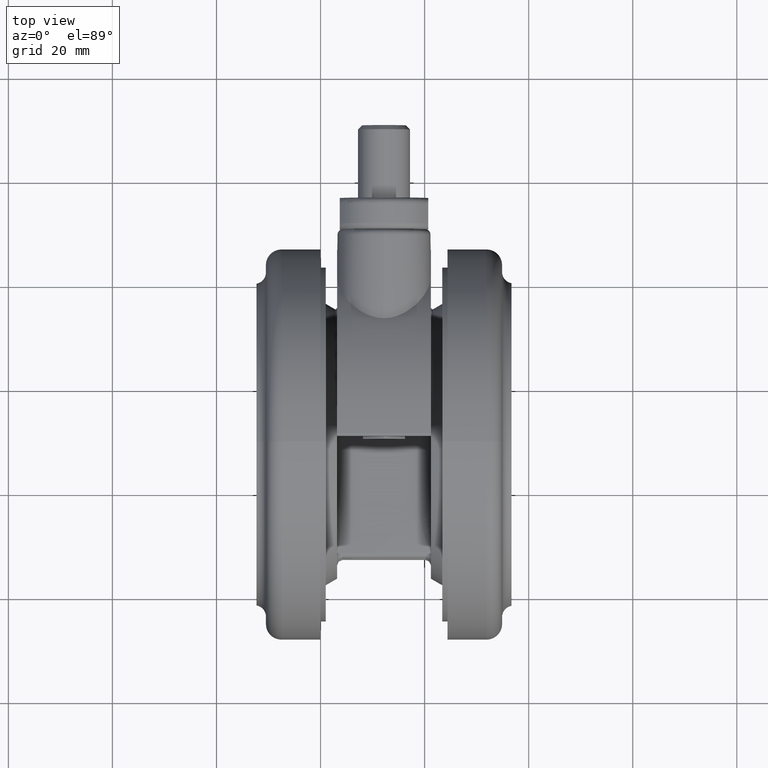
[diagram: clean part render]
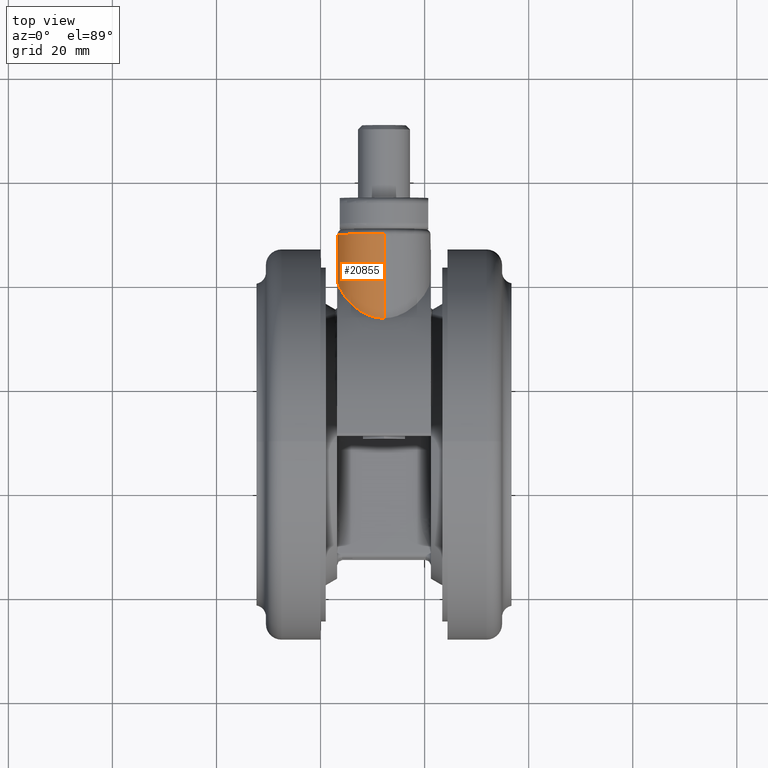
[diagram: same view with one face highlighted and labeled with its STEP entity id]
A machine part, top view. The second image highlights one B-rep face of the part: STEP entity #20855.
In plain terms, the highlighted cylindrical surface (partial cylindrical patch) has radius 9 mm, axis along (0, 1, 0).
Its self-contained STEP definition (entity closure, byte-faithful):
#33 = CARTESIAN_POINT ( 'NONE',  ( -33.30713176493436800, -18.30336398044475000, -33.33863695620522100 ) ) ;
#187 = CARTESIAN_POINT ( 'NONE',  ( -32.73438615120912200, -18.85755703146169500, -33.42719606618112500 ) ) ;
#363 = CARTESIAN_POINT ( 'NONE',  ( -32.08389776864351000, -19.54289166195427900, -33.48860210448997800 ) ) ;
#515 = CIRCLE ( 'NONE', #21694, 9.000000000000000000 ) ;
#520 = CARTESIAN_POINT ( 'NONE',  ( -31.78001900630533800, -19.91481397838273900, -33.49983213423386300 ) ) ;
#945 = CARTESIAN_POINT ( 'NONE',  ( -40.00000000002038500, -20.00000000000522200, -24.49999999999997900 ) ) ;
#1307 = VECTOR ( 'NONE', #34889, 1000.000000000000000 ) ;
#1968 = CARTESIAN_POINT ( 'NONE',  ( -23.77498685593116400, -29.00000000000517300, -24.49999999999997900 ) ) ;
#2136 = CARTESIAN_POINT ( 'NONE',  ( -26.54334829511083500, -26.49589436363392300, -30.75448524697714700 ) ) ;
#2562 = CARTESIAN_POINT ( 'NONE',  ( -40.00000000002041400, -11.00000000000522200, -24.49999999999997900 ) ) ;
#3170 = CARTESIAN_POINT ( 'NONE',  ( -35.87574802425783800, -15.66159338501061900, -32.38611689351988300 ) ) ;
#3324 = CARTESIAN_POINT ( 'NONE',  ( -35.06805180751398900, -16.60496974269844400, -32.83511306016504200 ) ) ;
#3348 = CARTESIAN_POINT ( 'NONE',  ( -37.69977894945471100, -11.41720464057487800, -27.21177603767621600 ) ) ;
#3482 = CARTESIAN_POINT ( 'NONE',  ( -34.36939333765092600, -17.30073031935056000, -33.08607637644161100 ) ) ;
#3503 = CARTESIAN_POINT ( 'NONE',  ( -36.88513145381682500, -13.71578737636843400, -30.94289655564686800 ) ) ;
#3636 = CARTESIAN_POINT ( 'NONE',  ( -33.67330947495853600, -17.95835017877312000, -33.26543658312031900 ) ) ;
#3653 = CARTESIAN_POINT ( 'NONE',  ( -36.62476291007291700, -14.34274337548590900, -31.49967753085571700 ) ) ;
#3801 = CARTESIAN_POINT ( 'NONE',  ( -33.29030494889100600, -18.31931536451793400, -33.34167984805252900 ) ) ;
#3957 = CARTESIAN_POINT ( 'NONE',  ( -32.72821978795075600, -18.86369291785017700, -33.42797941789683600 ) ) ;
#4121 = CARTESIAN_POINT ( 'NONE',  ( -31.97988616255907600, -19.66453473285828200, -33.49375817794388900 ) ) ;
#4282 = CARTESIAN_POINT ( 'NONE',  ( -31.72144385112048700, -20.00000000000519400, -33.49999999999994300 ) ) ;
#4507 = DIRECTION ( 'NONE',  ( -1.000000000000000000, -2.997602166487920300E-015, 0.0000000000000000000 ) ) ;
#4711 = DIRECTION ( 'NONE',  ( -3.083952846180990500E-015, 1.000000000000000000, 0.0000000000000000000 ) ) ;
#5738 = CARTESIAN_POINT ( 'NONE',  ( -23.77498685593117100, -29.00000000000517300, -25.19589137295714200 ) ) ;
#5858 = EDGE_CURVE ( 'NONE', #21084, #16599, #43460, .T. ) ;
#5887 = CARTESIAN_POINT ( 'NONE',  ( -27.75274312952664600, -25.22734377885575100, -31.84679253145716200 ) ) ;
#6935 = CARTESIAN_POINT ( 'NONE',  ( -35.70459386583026900, -15.88581641803392100, -32.50495600508141100 ) ) ;
#6952 = CARTESIAN_POINT ( 'NONE',  ( -37.82525612248529300, -10.99999999914741100, -24.49999999995632300 ) ) ;
#7086 = CARTESIAN_POINT ( 'NONE',  ( -35.03692874795783800, -16.63734434328247500, -32.84820913853399600 ) ) ;
#7106 = CARTESIAN_POINT ( 'NONE',  ( -37.63130571601269000, -11.63604617516592100, -27.82924064332484100 ) ) ;
#7248 = CARTESIAN_POINT ( 'NONE',  ( -34.13362449149796900, -17.52512340102790500, -33.15316796893933600 ) ) ;
#7270 = CARTESIAN_POINT ( 'NONE',  ( -36.84213650487051700, -13.82250245545517200, -31.04529622321571500 ) ) ;
#7408 = CARTESIAN_POINT ( 'NONE',  ( -33.59926125158543900, -18.02790571514947600, -33.28128301559603100 ) ) ;
#7436 = CARTESIAN_POINT ( 'NONE',  ( -36.61411752968402300, -14.36672245932378200, -31.51900622259868400 ) ) ;
#7575 = CARTESIAN_POINT ( 'NONE',  ( -33.28677697522150000, -18.32266206319951300, -33.34231518889743000 ) ) ;
#7734 = CARTESIAN_POINT ( 'NONE',  ( -32.52764197791672300, -19.06554754971840600, -33.45183454979846300 ) ) ;
#7897 = CARTESIAN_POINT ( 'NONE',  ( -31.95642704327560000, -19.69261116882563900, -33.49475088673983700 ) ) ;
#8677 = CARTESIAN_POINT ( 'NONE',  ( 500000.0000000000000, -10.99999999850630100, -24.49999999999997900 ) ) ;
#8921 = CARTESIAN_POINT ( 'NONE',  ( -31.72144385112048700, -20.00000000000519400, -33.49999999999994300 ) ) ;
#9490 = CARTESIAN_POINT ( 'NONE',  ( -24.14023075684809800, -28.69691220482011900, -26.83977753160290900 ) ) ;
#9641 = CARTESIAN_POINT ( 'NONE',  ( -28.98298255318832500, -23.80483597313923700, -32.67499635977414800 ) ) ;
#10053 = CARTESIAN_POINT ( 'NONE',  ( -37.82525612248529300, -10.99999999914741100, -24.49999999995632300 ) ) ;
#10678 = CARTESIAN_POINT ( 'NONE',  ( -35.59286097569509600, -16.02229684605807900, -32.57330506831237900 ) ) ;
#10849 = CARTESIAN_POINT ( 'NONE',  ( -34.93924374801813600, -16.73853326205973600, -32.88879374681921800 ) ) ;
#10876 = CARTESIAN_POINT ( 'NONE',  ( -37.49831965673433800, -12.04619451284945000, -28.72918992993434600 ) ) ;
#11020 = EDGE_LOOP ( 'NONE', ( #47266, #31587, #14058, #38408, #16192, #21673 ) ) ;
#11021 = CARTESIAN_POINT ( 'NONE',  ( -33.96271278572047700, -17.68648669367937400, -33.19763878015589900 ) ) ;
#11040 = CARTESIAN_POINT ( 'NONE',  ( -36.75417159556613500, -14.03747969069417900, -31.24223242824109200 ) ) ;
#11176 = CARTESIAN_POINT ( 'NONE',  ( -33.58080175280338900, -18.04525247711641400, -33.28515650682592800 ) ) ;
#11198 = CARTESIAN_POINT ( 'NONE',  ( -36.56896142202441500, -14.46626956007070100, -31.59801613666288800 ) ) ;
#11342 = CARTESIAN_POINT ( 'NONE',  ( -33.17312179566065600, -18.43050623676098400, -33.36275643291443800 ) ) ;
#11520 = CARTESIAN_POINT ( 'NONE',  ( -32.33150972654167500, -19.27075978897065100, -33.47059186936006400 ) ) ;
#11680 = CARTESIAN_POINT ( 'NONE',  ( -31.92585974901854900, -19.72949140906644100, -33.49597070387199700 ) ) ;
#13259 = CARTESIAN_POINT ( 'NONE',  ( -24.49629575243165600, -28.39379888046454100, -27.76296115049373400 ) ) ;
#13405 = CARTESIAN_POINT ( 'NONE',  ( -30.19984316497147200, -22.24118781089961100, -33.23430802410702300 ) ) ;
#14058 = ORIENTED_EDGE ( 'NONE', *, *, #24354, .T. ) ;
#14453 = CARTESIAN_POINT ( 'NONE',  ( -35.56517406487271400, -16.05531474266132000, -32.58946922727848500 ) ) ;
#14608 = CARTESIAN_POINT ( 'NONE',  ( -34.70533804498169400, -16.97326811115327800, -32.97593455769052200 ) ) ;
#14630 = CARTESIAN_POINT ( 'NONE',  ( -37.41395238338466100, -12.29339035712662600, -29.14873098418965100 ) ) ;
#14771 = CARTESIAN_POINT ( 'NONE',  ( -33.88940375874794600, -17.75545183611961900, -33.21562311405325800 ) ) ;
#14794 = CARTESIAN_POINT ( 'NONE',  ( -36.71915457321480100, -14.12143590763146700, -31.31487600060783900 ) ) ;
#14938 = CARTESIAN_POINT ( 'NONE',  ( -33.49885918532889700, -18.12226787816748100, -33.30223045523489800 ) ) ;
#14968 = CARTESIAN_POINT ( 'NONE',  ( -36.38331424830957400, -14.85052108653603000, -31.89035894284504700 ) ) ;
#15108 = CARTESIAN_POINT ( 'NONE',  ( -32.93017515348614700, -18.66496542939007600, -33.40054950431672900 ) ) ;
#15254 = CARTESIAN_POINT ( 'NONE',  ( -32.22806403136522800, -19.38263370771758100, -33.47881113503473900 ) ) ;
#15424 = CARTESIAN_POINT ( 'NONE',  ( -31.86191101510380700, -19.80902136509506700, -33.49798701780802900 ) ) ;
#16192 = ORIENTED_EDGE ( 'NONE', *, *, #36313, .T. ) ;
#16599 = VERTEX_POINT ( 'NONE', #2562 ) ;
#17032 = CARTESIAN_POINT ( 'NONE',  ( -24.93385008721722300, -28.01058705579846700, -28.61417754313480100 ) ) ;
#17187 = CARTESIAN_POINT ( 'NONE',  ( -31.35468604444054100, -20.58170435858300400, -33.49999999999998600 ) ) ;
#17249 = CYLINDRICAL_SURFACE ( 'NONE', #19781, 8.999999999999998200 ) ;
#17461 = CARTESIAN_POINT ( 'NONE',  ( -36.00288834672935000, -15.47403794687700600, -32.27918167249248400 ) ) ;
#18240 = CARTESIAN_POINT ( 'NONE',  ( -35.47803918197207200, -16.15840932896814100, -32.63954255213406000 ) ) ;
#18376 = EDGE_CURVE ( 'NONE', #21084, #35752, #22528, .T. ) ;
#18393 = CARTESIAN_POINT ( 'NONE',  ( -34.54213929490060100, -17.13351409128105400, -33.03138302540587300 ) ) ;
#18415 = CARTESIAN_POINT ( 'NONE',  ( -37.36835416826163900, -12.42547160023361900, -29.36252267166167600 ) ) ;
#18564 = CARTESIAN_POINT ( 'NONE',  ( -33.87164802442477200, -17.77214023306839500, -33.21989981361321800 ) ) ;
#18580 = CARTESIAN_POINT ( 'NONE',  ( -36.70794696675430700, -14.14825351123833700, -31.33793864051492100 ) ) ;
#18708 = CARTESIAN_POINT ( 'NONE',  ( -33.36565893035491100, -18.24798280816455400, -33.32785194627558700 ) ) ;
#18738 = CARTESIAN_POINT ( 'NONE',  ( -36.00288834672935000, -15.47403794687700600, -32.27918167249248400 ) ) ;
#18880 = CARTESIAN_POINT ( 'NONE',  ( -32.79228154604476200, -18.80014792022326700, -33.41969910455880900 ) ) ;
#19040 = CARTESIAN_POINT ( 'NONE',  ( -32.20443335768599300, -19.40855223128224300, -33.48054655379912200 ) ) ;
#19199 = CARTESIAN_POINT ( 'NONE',  ( -31.83909502699988500, -19.83823189951308300, -33.49854651692262300 ) ) ;
#19591 = CARTESIAN_POINT ( 'NONE',  ( 500000.0000000000000, -19.99999999850630100, -24.49999999999997900 ) ) ;
#19781 = AXIS2_PLACEMENT_3D ( 'NONE', #19591, #4507, #45738 ) ;
#20805 = CARTESIAN_POINT ( 'NONE',  ( -25.43501765697446300, -27.55652986852765500, -29.39779525486317300 ) ) ;
#20855 = ADVANCED_FACE ( 'NONE', ( #29542 ), #17249, .T. ) ;
#21084 = VERTEX_POINT ( 'NONE', #10053 ) ;
#21673 = ORIENTED_EDGE ( 'NONE', *, *, #22418, .T. ) ;
#21694 = AXIS2_PLACEMENT_3D ( 'NONE', #945, #27155, #4711 ) ;
#21836 = CARTESIAN_POINT ( 'NONE',  ( -36.00288834672935000, -15.47403794687700600, -32.27918167249248400 ) ) ;
#22006 = CARTESIAN_POINT ( 'NONE',  ( -35.26353800994760900, -16.39715942307436300, -32.74756642102613600 ) ) ;
#22031 = CARTESIAN_POINT ( 'NONE',  ( -37.72640896010328500, -11.33037019789495900, -26.91659883914135400 ) ) ;
#22169 = CARTESIAN_POINT ( 'NONE',  ( -34.47681129401884400, -17.19691779537652500, -33.05235495489781500 ) ) ;
#22189 = CARTESIAN_POINT ( 'NONE',  ( -37.23792549904079200, -12.79249974631330000, -29.89353957895961900 ) ) ;
#22333 = CARTESIAN_POINT ( 'NONE',  ( -33.82745140500750800, -17.81366776164208000, -33.23047779550654500 ) ) ;
#22354 = CARTESIAN_POINT ( 'NONE',  ( -36.66397747050916700, -14.25265772654398500, -31.42620015085245600 ) ) ;
#22418 = EDGE_CURVE ( 'NONE', #42246, #16599, #515, .T. ) ;
#22442 = B_SPLINE_CURVE_WITH_KNOTS ( 'NONE', 3,
 ( #1968, #5738, #31962, #9490, #35692, #13259, #39437, #17032, #43190, #20805, #46940, #24563, #2136, #28333, #5887, #32116, #9641, #35839, #13405, #39603, #17187, #43351 ),
 .UNSPECIFIED., .F., .F.,
 ( 4, 2, 2, 2, 2, 2, 2, 2, 2, 2, 4 ),
 ( 0.0000000000000000000, 0.002046368176837288100, 0.003069552265255935800, 0.004092736353674584000, 0.005115920442093231300, 0.006139104530511879500, 0.008185472707349175000, 0.01023184088418647000, 0.01227820906102376600, 0.01432457723786106100, 0.01637094541469835700 ),
 .UNSPECIFIED. ) ;
#22497 = CARTESIAN_POINT ( 'NONE',  ( -33.31891933409124100, -18.29220130430198700, -33.33648650440631700 ) ) ;
#22528 = B_SPLINE_CURVE_WITH_KNOTS ( 'NONE', 3,
 ( #6952, #25608, #44423, #22031, #48150, #25770, #3348, #29563, #7106, #33320, #10876, #37049, #14630, #40816, #18415, #44575, #22189, #48323, #25930, #3503, #29733, #7270, #33480, #11040, #37218, #14794, #40973, #18580, #44736, #22354, #48472, #26104, #3653, #29893, #7436, #33644, #11198, #37376, #14968, #41123, #18738 ),
 .UNSPECIFIED., .F., .F.,
 ( 4, 2, 2, 1, 1, 2, 2, 2, 1, 1, 2, 2, 2, 1, 2, 2, 1, 1, 1, 2, 2, 1, 1, 1, 2, 4 ),
 ( 0.4998237799459088200, 0.6248678349594560800, 0.6326830883978026300, 0.6404983418361491800, 0.6561288487128423800, 0.6873898624662282400, 0.7499118899729998500, 0.7577271434113466200, 0.7655423968496931600, 0.7811729037263863700, 0.8124339174797734500, 0.8749559449865473800, 0.8827711984248940400, 0.8905864518632407000, 0.9062169587399335800, 0.9071938654197266900, 0.9081707720995196900, 0.9101245854591051300, 0.9140322121782750200, 0.9218474656166147900, 0.9228243722964070100, 0.9238012789761992400, 0.9257550923357837900, 0.9296627190549531200, 0.9374779724932920100, 1.000000000000000000 ),
 .UNSPECIFIED. ) ;
#22659 = CARTESIAN_POINT ( 'NONE',  ( -32.74145350553958900, -18.85052839182229400, -33.42629566332527000 ) ) ;
#22822 = CARTESIAN_POINT ( 'NONE',  ( -32.14926086968716100, -19.46936957280348300, -33.48448637837983500 ) ) ;
#22985 = CARTESIAN_POINT ( 'NONE',  ( -31.83332459592236300, -19.84567859457332500, -33.49867776104884600 ) ) ;
#23472 = B_SPLINE_CURVE_WITH_KNOTS ( 'NONE', 3,
 ( #21836, #25585, #3170, #29376, #6935, #33133, #10678, #36865, #14453, #40633, #18240, #44407, #22006, #48130, #25746, #3324, #29537, #7086, #33302, #10849, #37032, #14608, #40795, #18393, #44555, #22169, #48301, #25912, #3482, #29709, #7248, #33457, #11021, #37192, #14771, #40951, #18564, #44714, #22333, #48453, #26076, #3636, #29871, #7408, #33624, #11176, #37357, #14938, #41107, #18708, #44879, #22497, #33, #26246, #3801, #30032, #7575, #33791, #11342, #37514, #15108, #41266, #18880, #45029, #22659, #187, #26406, #3957, #30198, #7734, #33950, #11520, #37681, #15254, #41433, #19040, #45191, #22822, #363, #26569, #4121, #30362, #7897, #34107, #11680, #37846, #15424, #41588, #19199, #45352, #22985, #520, #26747, #4282 ),
 .UNSPECIFIED., .F., .F.,
 ( 4, 2, 1, 1, 1, 2, 2, 2, 1, 1, 1, 2, 2, 2, 1, 1, 1, 2, 2, 2, 1, 1, 1, 1, 2, 2, 2, 1, 1, 1, 2, 2, 2, 2, 1, 1, 1, 2, 2, 2, 1, 1, 1, 1, 2, 2, 2, 1, 1, 1, 2, 2, 1, 1, 1, 2, 2, 1, 1, 1, 2, 2, 4 ),
 ( 0.0000000000000000000, 0.06250000000006475400, 0.09375000000009801900, 0.1093750000001126300, 0.1171875000001190600, 0.1210937500001213800, 0.1250000000001237100, 0.1875000000001229300, 0.2187500000001234600, 0.2343750000001242100, 0.2421875000001255100, 0.2460937500001252600, 0.2500000000001250100, 0.3125000000001413300, 0.3437500000001511600, 0.3593750000001578700, 0.3671875000001609300, 0.3710937500001624800, 0.3750000000001640400, 0.4375000000001776900, 0.4687500000001856800, 0.4843750000001888500, 0.4921875000001914600, 0.4960937500001927900, 0.4980468750001930100, 0.5000000000001931800, 0.5312500000002105000, 0.5468750000002184900, 0.5546875000002228200, 0.5585937500002262600, 0.5605468750002281500, 0.5625000000002300400, 0.5937500000002571300, 0.6093750000002695600, 0.6171875000002738900, 0.6210937500002746700, 0.6230468750002740000, 0.6240234375002730000, 0.6250000000002720000, 0.6875000000002523500, 0.7187500000002420300, 0.7343750000002358100, 0.7421875000002340400, 0.7460937500002353700, 0.7480468750002359200, 0.7500000000002364800, 0.8125000000001818500, 0.8437500000001533200, 0.8593750000001390000, 0.8671875000001312300, 0.8710937500001273400, 0.8750000000001234600, 0.9062500000001002500, 0.9218750000000886000, 0.9296875000000820500, 0.9335937500000782700, 0.9375000000000746100, 0.9531250000000611700, 0.9609375000000547300, 0.9648437500000508500, 0.9667968750000477400, 0.9687500000000446300, 1.000000000000000000 ),
 .UNSPECIFIED. ) ;
#24354 = EDGE_CURVE ( 'NONE', #35752, #42406, #23472, .T. ) ;
#24563 = CARTESIAN_POINT ( 'NONE',  ( -26.15738813550503000, -26.87549940287174600, -30.33620474371713600 ) ) ;
#25585 = CARTESIAN_POINT ( 'NONE',  ( -35.94306769167590000, -15.56608447125747600, -32.33273474452597200 ) ) ;
#25608 = CARTESIAN_POINT ( 'NONE',  ( -37.82525453572685600, -11.00000000000129100, -25.30885647837396800 ) ) ;
#25746 = CARTESIAN_POINT ( 'NONE',  ( -35.11105097441765100, -16.55998480856659000, -32.81670840240639800 ) ) ;
#25770 = CARTESIAN_POINT ( 'NONE',  ( -37.71328710558184100, -11.37324194087037400, -27.06547219879070500 ) ) ;
#25912 = CARTESIAN_POINT ( 'NONE',  ( -34.45542385250752200, -17.21760975325471700, -33.05910806907083800 ) ) ;
#25930 = CARTESIAN_POINT ( 'NONE',  ( -37.00638128087331300, -13.41213506193963300, -30.64358791031077100 ) ) ;
#26076 = CARTESIAN_POINT ( 'NONE',  ( -33.71185877551852900, -17.92216229666572900, -33.25689095348583600 ) ) ;
#26104 = CARTESIAN_POINT ( 'NONE',  ( -36.62731490384764000, -14.33696561079059600, -31.49500284976986100 ) ) ;
#26246 = CARTESIAN_POINT ( 'NONE',  ( -33.29555184661704500, -18.31433967641939700, -33.34073326202001700 ) ) ;
#26406 = CARTESIAN_POINT ( 'NONE',  ( -32.72969303817345100, -18.86222672301184400, -33.42779242089410000 ) ) ;
#26569 = CARTESIAN_POINT ( 'NONE',  ( -32.01356871502032000, -19.62465725315265500, -33.49222101250241900 ) ) ;
#26747 = CARTESIAN_POINT ( 'NONE',  ( -31.74377063229864900, -19.96490326717787100, -33.49999999999997900 ) ) ;
#27155 = DIRECTION ( 'NONE',  ( 1.000000000000000000, 2.997602166487920300E-015, 0.0000000000000000000 ) ) ;
#28333 = CARTESIAN_POINT ( 'NONE',  ( -27.34456565225937700, -25.66819990053232200, -31.51332582843134500 ) ) ;
#29348 = DIRECTION ( 'NONE',  ( -1.000000000000000000, -2.997602166487920300E-015, 0.0000000000000000000 ) ) ;
#29376 = CARTESIAN_POINT ( 'NONE',  ( -35.76352000501023600, -15.81018720192738800, -32.46546430667324000 ) ) ;
#29537 = CARTESIAN_POINT ( 'NONE',  ( -35.04940686838033100, -16.62437737001686600, -32.84297433451059300 ) ) ;
#29542 = FACE_OUTER_BOUND ( 'NONE', #11020, .T. ) ;
#29563 = CARTESIAN_POINT ( 'NONE',  ( -37.66547730925149300, -11.52785233042470400, -27.54863773809253800 ) ) ;
#29709 = CARTESIAN_POINT ( 'NONE',  ( -34.28008741500814000, -17.38610893949993400, -33.11260087541412400 ) ) ;
#29733 = CARTESIAN_POINT ( 'NONE',  ( -36.87062402062500200, -13.75193012533071300, -30.97796275103127800 ) ) ;
#29847 = VERTEX_POINT ( 'NONE', #40564 ) ;
#29871 = CARTESIAN_POINT ( 'NONE',  ( -33.62457132095733700, -18.00412616772242900, -33.27592280761498200 ) ) ;
#29893 = CARTESIAN_POINT ( 'NONE',  ( -36.62050819817588400, -14.35234384522217600, -31.50742591890739400 ) ) ;
#30032 = CARTESIAN_POINT ( 'NONE',  ( -33.28817264860622100, -18.32133802290690700, -33.34206392312894000 ) ) ;
#30198 = CARTESIAN_POINT ( 'NONE',  ( -32.62287791600707700, -18.96861282838063900, -33.44129511649140300 ) ) ;
#30362 = CARTESIAN_POINT ( 'NONE',  ( -31.96576834886222300, -19.68140937323712300, -33.49436109018179800 ) ) ;
#30406 = CARTESIAN_POINT ( 'NONE',  ( -40.00000000002035700, -29.00000000000522200, -24.49999999999997900 ) ) ;
#31587 = ORIENTED_EDGE ( 'NONE', *, *, #18376, .T. ) ;
#31962 = CARTESIAN_POINT ( 'NONE',  ( -23.87268563614882300, -28.92056231918271100, -25.86635686856776000 ) ) ;
#32116 = CARTESIAN_POINT ( 'NONE',  ( -28.57072128651583400, -24.29706794076789200, -32.42689665600806100 ) ) ;
#32348 = EDGE_CURVE ( 'NONE', #29847, #42406, #22442, .T. ) ;
#33133 = CARTESIAN_POINT ( 'NONE',  ( -35.63092547672014400, -15.97640839341781700, -32.55060256855191600 ) ) ;
#33302 = CARTESIAN_POINT ( 'NONE',  ( -35.02969930090198100, -16.64484296952845500, -32.85122485375110600 ) ) ;
#33320 = CARTESIAN_POINT ( 'NONE',  ( -37.55660228018885500, -11.86893365080549900, -28.37866309515943900 ) ) ;
#33457 = CARTESIAN_POINT ( 'NONE',  ( -34.05726701984692500, -17.59736714855830900, -33.17364408202003300 ) ) ;
#33480 = CARTESIAN_POINT ( 'NONE',  ( -36.79890475884921800, -13.92902575293427600, -31.14528699538303500 ) ) ;
#33624 = CARTESIAN_POINT ( 'NONE',  ( -33.58821243785043700, -18.03828824889537000, -33.28360402871299300 ) ) ;
#33644 = CARTESIAN_POINT ( 'NONE',  ( -36.59914576596217700, -14.40011653147245600, -31.54573227945979500 ) ) ;
#33791 = CARTESIAN_POINT ( 'NONE',  ( -33.28717475287994200, -18.32228455501320900, -33.34224370605565500 ) ) ;
#33950 = CARTESIAN_POINT ( 'NONE',  ( -32.39515870465463400, -19.20358290235139300, -33.46481207855287500 ) ) ;
#34107 = CARTESIAN_POINT ( 'NONE',  ( -31.95252455401961100, -19.69730340138488600, -33.49491057525597900 ) ) ;
#34680 = VECTOR ( 'NONE', #29348, 1000.000000000000000 ) ;
#34889 = DIRECTION ( 'NONE',  ( -1.000000000000000000, -2.997602166487920300E-015, 0.0000000000000000000 ) ) ;
#35692 = CARTESIAN_POINT ( 'NONE',  ( -24.24970388180744900, -28.60468811400543000, -27.15746450136500200 ) ) ;
#35752 = VERTEX_POINT ( 'NONE', #17461 ) ;
#35839 = CARTESIAN_POINT ( 'NONE',  ( -29.80076336563379200, -22.77274678671816200, -33.08016418966141700 ) ) ;
#36313 = EDGE_CURVE ( 'NONE', #29847, #42246, #44593, .T. ) ;
#36865 = CARTESIAN_POINT ( 'NONE',  ( -35.57628398077217500, -16.04209059456606600, -32.58300731763422000 ) ) ;
#37032 = CARTESIAN_POINT ( 'NONE',  ( -34.84884183300590600, -16.83026026853861600, -32.92395632988125700 ) ) ;
#37049 = CARTESIAN_POINT ( 'NONE',  ( -37.42321133082349900, -12.26636544859443500, -29.10361008680515100 ) ) ;
#37192 = CARTESIAN_POINT ( 'NONE',  ( -33.91406803929889700, -17.73226065395388700, -33.20963169021064900 ) ) ;
#37218 = CARTESIAN_POINT ( 'NONE',  ( -36.72177660236435800, -14.11515303789631100, -31.30945025259302400 ) ) ;
#37357 = CARTESIAN_POINT ( 'NONE',  ( -33.57797789579209500, -18.04790631861860100, -33.28574699914306500 ) ) ;
#37376 = CARTESIAN_POINT ( 'NONE',  ( -36.54267629898760800, -14.52184616071200600, -31.64086358049866000 ) ) ;
#37514 = CARTESIAN_POINT ( 'NONE',  ( -33.07027327396858900, -18.52915396884454300, -33.37947110399832700 ) ) ;
#37681 = CARTESIAN_POINT ( 'NONE',  ( -32.26178973759325400, -19.34588542714325500, -33.47624185272746200 ) ) ;
#37846 = CARTESIAN_POINT ( 'NONE',  ( -31.89523553849463900, -19.76705610724639300, -33.49704200164021700 ) ) ;
#38408 = ORIENTED_EDGE ( 'NONE', *, *, #32348, .F. ) ;
#39437 = CARTESIAN_POINT ( 'NONE',  ( -24.63416093652268700, -28.27451117766293700, -28.05364975844474900 ) ) ;
#39603 = CARTESIAN_POINT ( 'NONE',  ( -30.97680016170051700, -21.14565709952410400, -33.44418969353871100 ) ) ;
#40564 = CARTESIAN_POINT ( 'NONE',  ( -23.77498685593116400, -29.00000000000517300, -24.49999999999997900 ) ) ;
#40633 = CARTESIAN_POINT ( 'NONE',  ( -35.55872233796603200, -16.06296713441689100, -32.59319536201766700 ) ) ;
#40795 = CARTESIAN_POINT ( 'NONE',  ( -34.63161092214289000, -17.04612608010126700, -33.00173167089919000 ) ) ;
#40816 = CARTESIAN_POINT ( 'NONE',  ( -37.39589075283769400, -12.34585210331323400, -29.23461211997771200 ) ) ;
#40951 = CARTESIAN_POINT ( 'NONE',  ( -33.87876008692638400, -17.76545616910440400, -33.21818936295668600 ) ) ;
#40973 = CARTESIAN_POINT ( 'NONE',  ( -36.71464757350904100, -14.13222563126328300, -31.32416842181829600 ) ) ;
#41107 = CARTESIAN_POINT ( 'NONE',  ( -33.43763487085501400, -18.18000424708068900, -33.31417905211846200 ) ) ;
#41123 = CARTESIAN_POINT ( 'NONE',  ( -36.20935840102288200, -15.15632124267449600, -32.09433238021915000 ) ) ;
#41266 = CARTESIAN_POINT ( 'NONE',  ( -32.86366975877779600, -18.72983302518497700, -33.41008731058816700 ) ) ;
#41433 = CARTESIAN_POINT ( 'NONE',  ( -32.21385321891099100, -19.39820814909047500, -33.47985932162934100 ) ) ;
#41588 = CARTESIAN_POINT ( 'NONE',  ( -31.84584968381695800, -19.82953857753407000, -33.49838885703733400 ) ) ;
#42246 = VERTEX_POINT ( 'NONE', #30406 ) ;
#42406 = VERTEX_POINT ( 'NONE', #8921 ) ;
#43190 = CARTESIAN_POINT ( 'NONE',  ( -25.09650932623477700, -27.86516967907911600, -28.88504822457046100 ) ) ;
#43351 = CARTESIAN_POINT ( 'NONE',  ( -31.72144385112048700, -20.00000000000519400, -33.49999999999994300 ) ) ;
#43460 = LINE ( 'NONE', #8677, #1307 ) ;
#44407 = CARTESIAN_POINT ( 'NONE',  ( -35.39593748094681300, -16.25175253415676500, -32.68302445938117300 ) ) ;
#44423 = CARTESIAN_POINT ( 'NONE',  ( -37.79362347115978300, -11.10974393575788700, -26.10799439875046000 ) ) ;
#44555 = CARTESIAN_POINT ( 'NONE',  ( -34.49653931867504000, -17.17780675020906900, -33.04608325949030200 ) ) ;
#44575 = CARTESIAN_POINT ( 'NONE',  ( -37.30099316610536400, -12.61757271196413700, -29.65453170879547400 ) ) ;
#44593 = LINE ( 'NONE', #47949, #34680 ) ;
#44714 = CARTESIAN_POINT ( 'NONE',  ( -33.86682779843990000, -17.77666970763531400, -33.22105540945348400 ) ) ;
#44736 = CARTESIAN_POINT ( 'NONE',  ( -36.69273146799094600, -14.18454729980535100, -31.36889854289479700 ) ) ;
#44879 = CARTESIAN_POINT ( 'NONE',  ( -33.34497703869804000, -18.26753952689140100, -33.33169639534230600 ) ) ;
#45029 = CARTESIAN_POINT ( 'NONE',  ( -32.75813779363451100, -18.83395958351297800, -33.42415322550743900 ) ) ;
#45191 = CARTESIAN_POINT ( 'NONE',  ( -32.20082372293831000, -19.41252153187258900, -33.48080782079581800 ) ) ;
#45352 = CARTESIAN_POINT ( 'NONE',  ( -31.83462053818730200, -19.84400527272069300, -33.49864845299651300 ) ) ;
#45738 = DIRECTION ( 'NONE',  ( 0.0000000000000000000, -1.000000000000000000, 0.0000000000000000000 ) ) ;
#46940 = CARTESIAN_POINT ( 'NONE',  ( -25.61143402058552700, -27.39283305840230700, -29.64095942728801000 ) ) ;
#47266 = ORIENTED_EDGE ( 'NONE', *, *, #5858, .F. ) ;
#47949 = CARTESIAN_POINT ( 'NONE',  ( 500000.0000000000000, -28.99999999850629700, -24.49999999999997900 ) ) ;
#48130 = CARTESIAN_POINT ( 'NONE',  ( -35.19502654466088400, -16.47121059995908300, -32.77966659667016800 ) ) ;
#48150 = CARTESIAN_POINT ( 'NONE',  ( -37.72202753260275900, -11.34471501139420700, -26.96751777694527200 ) ) ;
#48301 = CARTESIAN_POINT ( 'NONE',  ( -34.46361812697194400, -17.20968706334174700, -33.05652960235396200 ) ) ;
#48323 = CARTESIAN_POINT ( 'NONE',  ( -37.10468394442299500, -13.15453929493941800, -30.35602118528375100 ) ) ;
#48453 = CARTESIAN_POINT ( 'NONE',  ( -33.78465569699074700, -17.85383062707380800, -33.24048921933644600 ) ) ;
#48472 = CARTESIAN_POINT ( 'NONE',  ( -36.64220604450805800, -14.30317070208481500, -31.46761301309054200 ) ) ;